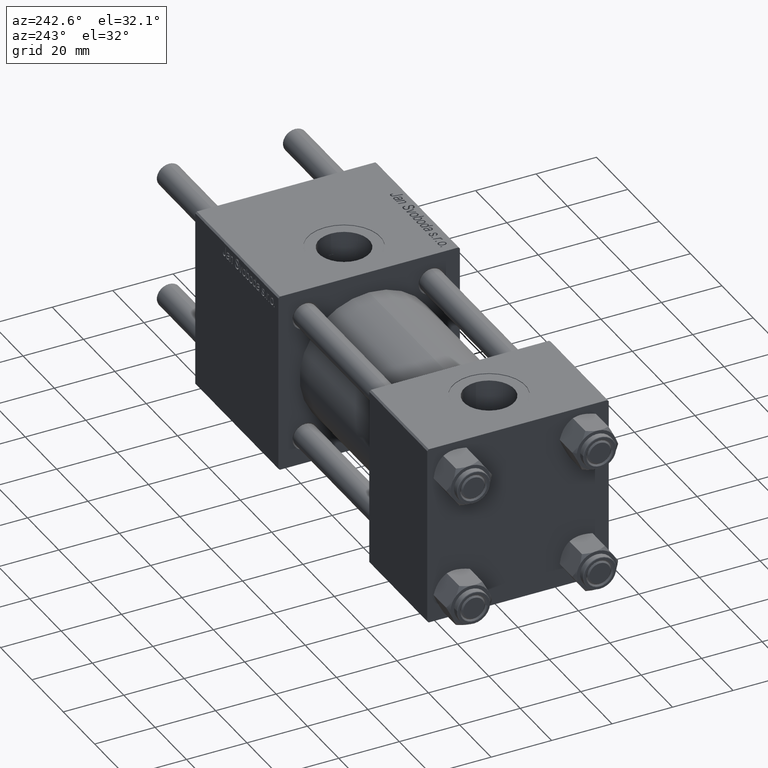
[diagram: clean part render]
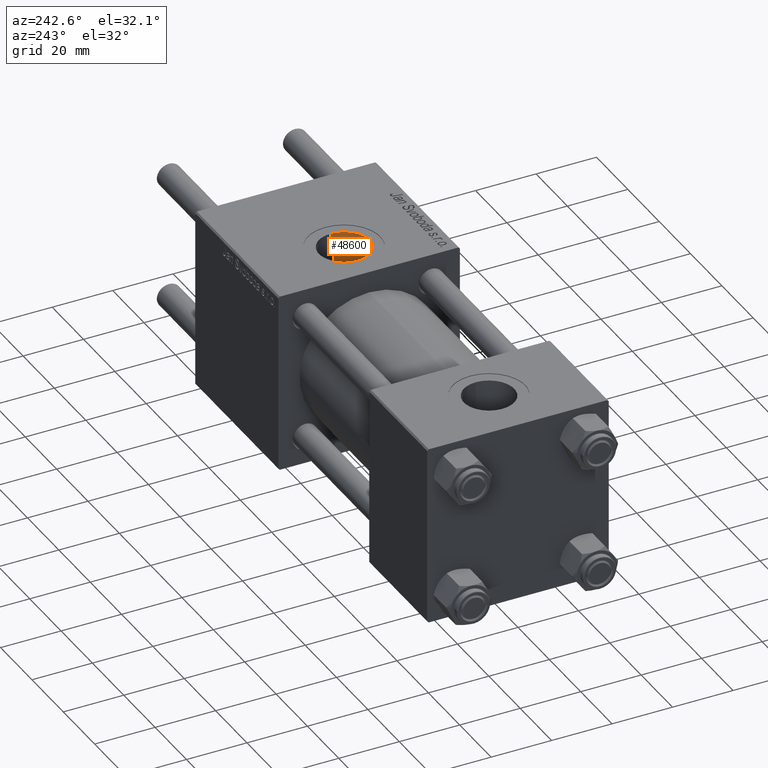
[diagram: same view with one face highlighted and labeled with its STEP entity id]
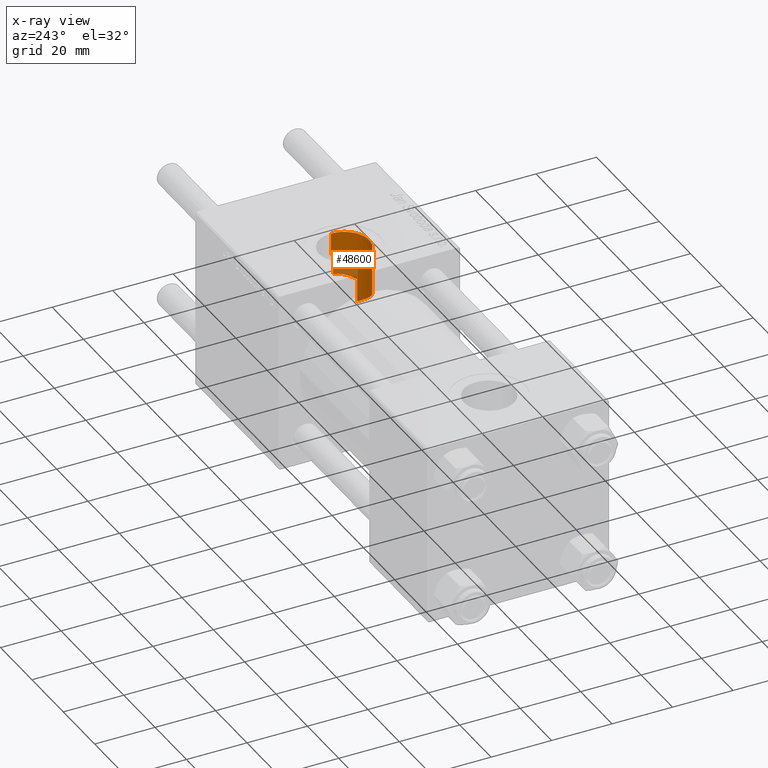
[diagram: x-ray of the same camera — body ghosted, the highlighted face saturated]
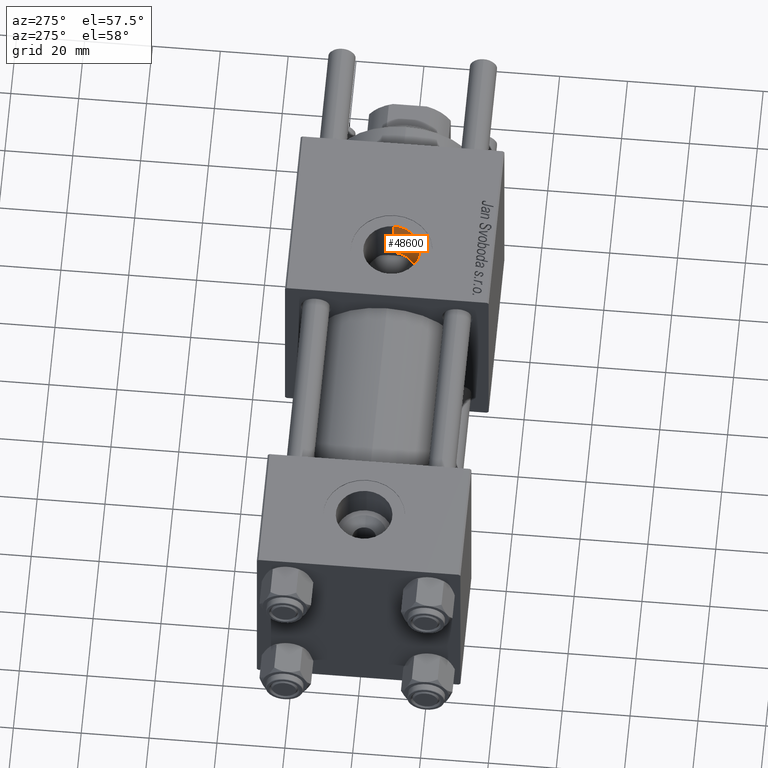
[diagram: same view with one face highlighted and labeled with its STEP entity id]
A machine part, auxiliary view. The second image highlights one B-rep face of the part: STEP entity #48600.
The next image is the same camera in x-ray: the body ghosted, the highlighted face saturated — about 10% of this face is hidden behind the body in this view.
A second angle (auxiliary view) of the same face is appended — the face is thin or edge-on in the first view.
In plain terms, the highlighted cylindrical surface (edge-blend (fillet) strip) has radius 8.33 mm, axis along (0, 0, -1).
Its self-contained STEP definition (entity closure, byte-faithful):
#262 = CARTESIAN_POINT ( 'NONE',  ( 103.7356139241942827, -4.094008462183724717, 14.95330218343579709 ) ) ;
#553 = ORIENTED_EDGE ( 'NONE', *, *, #54469, .F. ) ;
#1078 = DIRECTION ( 'NONE',  ( -0.000000000000000000, -0.000000000000000000, -1.000000000000000000 ) ) ;
#1428 = CARTESIAN_POINT ( 'NONE',  ( 104.8421395764249837, -5.622509492967815881, 14.44759832893447360 ) ) ;
#1665 = CARTESIAN_POINT ( 'NONE',  ( 119.3300000000000125, 2.755455270027974659E-15, 22.50000000000000355 ) ) ;
#2362 = CARTESIAN_POINT ( 'NONE',  ( 118.2557022334251258, -4.107191428843018244, 14.94947048340120332 ) ) ;
#2616 = B_SPLINE_CURVE_WITH_KNOTS ( 'NONE', 3,
 ( #5282, #32548, #50592, #40839, #1428, #23643, #36109, #262, #18330, #36400, #54441, #13892, #31970, #23067, #41130, #28688 ),
 .UNSPECIFIED., .F., .F.,
 ( 4, 2, 2, 2, 2, 2, 2, 4 ),
 ( 1.762687342693953287E-17, 0.002343612196725057811, 0.003515418295087579994, 0.004687224393450101743, 0.005859030491812623059, 0.007030836590175145243, 0.008202642688537667426, 0.009374448786900189609 ),
 .UNSPECIFIED. ) ;
#5282 = CARTESIAN_POINT ( 'NONE',  ( 107.2451498032544919, -7.435724578008534813, 13.59999999999999076 ) ) ;
#5804 = DIRECTION ( 'NONE',  ( 1.000000000000000000, 0.000000000000000000, 0.000000000000000000 ) ) ;
#6272 = ORIENTED_EDGE ( 'NONE', *, *, #25808, .T. ) ;
#6368 = CARTESIAN_POINT ( 'NONE',  ( 119.3300000000000125, -2.449316168263869821E-15, 29.79999999999999716 ) ) ;
#6795 = CARTESIAN_POINT ( 'NONE',  ( 116.7527035097904502, -6.034536163537686626, 14.27924648151569897 ) ) ;
#7537 = DIRECTION ( 'NONE',  ( -0.000000000000000000, -0.000000000000000000, 1.000000000000000000 ) ) ;
#8087 = DIRECTION ( 'NONE',  ( 1.000000000000000000, 0.000000000000000000, 0.000000000000000000 ) ) ;
#9690 = CARTESIAN_POINT ( 'NONE',  ( 111.0000000000000000, -3.469446951953613794E-15, 52.79999999999999716 ) ) ;
#11047 = ORIENTED_EDGE ( 'NONE', *, *, #28153, .F. ) ;
#11254 = ORIENTED_EDGE ( 'NONE', *, *, #38119, .T. ) ;
#11535 = CARTESIAN_POINT ( 'NONE',  ( 115.0719793388101806, -7.275582495151264872, 13.68755679569670036 ) ) ;
#12126 = VERTEX_POINT ( 'NONE', #22585 ) ;
#13785 = CIRCLE ( 'NONE', #32701, 8.330000000000003624 ) ;
#13892 = CARTESIAN_POINT ( 'NONE',  ( 102.8906515532532637, -1.943315834972990430, 15.38227098439064022 ) ) ;
#14820 = CARTESIAN_POINT ( 'NONE',  ( 119.2379181272459761, -1.435846766692881138, 15.45061967576075013 ) ) ;
#15114 = CARTESIAN_POINT ( 'NONE',  ( 119.0832175232422827, -2.135847849508031526, 15.36739229984345556 ) ) ;
#15635 = EDGE_CURVE ( 'NONE', #43841, #28056, #13785, .T. ) ;
#15814 = VECTOR ( 'NONE', #55198, 1000.000000000000000 ) ;
#15987 = CARTESIAN_POINT ( 'NONE',  ( 116.2310764146980091, -6.491922975836205367, 14.07719584522191347 ) ) ;
#16439 = CARTESIAN_POINT ( 'NONE',  ( 119.2999999999999829, -0.7063285354565423946, 52.79999999999999716 ) ) ;
#16855 = CARTESIAN_POINT ( 'NONE',  ( 117.6814859054843367, -4.986894924185446776, 14.67899340481585746 ) ) ;
#17961 = VECTOR ( 'NONE', #7537, 1000.000000000000000 ) ;
#18149 = VECTOR ( 'NONE', #33084, 1000.000000000000000 ) ;
#18330 = CARTESIAN_POINT ( 'NONE',  ( 103.5555123538905207, -3.757474466741724584, 15.04203335714862710 ) ) ;
#18843 = CARTESIAN_POINT ( 'NONE',  ( 111.0000000000000000, -3.469446951953613794E-15, 29.79999999999999716 ) ) ;
#19086 = LINE ( 'NONE', #50193, #15814 ) ;
#19127 = CARTESIAN_POINT ( 'NONE',  ( 102.6700000000000017, -3.469446951953613794E-15, 29.79999999999999716 ) ) ;
#19139 = CARTESIAN_POINT ( 'NONE',  ( 119.3200361445783102, -0.4708856903043605602, 22.49630535626710781 ) ) ;
#20606 = LINE ( 'NONE', #25062, #18149 ) ;
#20861 = CIRCLE ( 'NONE', #50205, 8.330000000000003624 ) ;
#21134 = CARTESIAN_POINT ( 'NONE',  ( 111.0000000000000000, -3.469446951953613794E-15, 13.59999999999999076 ) ) ;
#21162 = LINE ( 'NONE', #16439, #17961 ) ;
#21591 = CARTESIAN_POINT ( 'NONE',  ( 118.0762267006177098, -4.408899020335755203, 14.86282536370445229 ) ) ;
#21986 = B_SPLINE_CURVE_WITH_KNOTS ( 'NONE', 3,
 ( #55367, #14820, #15114, #33195, #51235, #2362, #21591, #16855, #39065, #44099, #6795, #15987, #34642, #30494, #11535, #39658 ),
 .UNSPECIFIED., .F., .F.,
 ( 4, 2, 2, 2, 2, 2, 2, 4 ),
 ( 3.416651864263509077E-16, 0.002164281519508079021, 0.003246422279261940939, 0.004328563039015803290, 0.005410703798769665208, 0.006492844558523526259, 0.007574985318277389044, 0.008657126078031250963 ),
 .UNSPECIFIED. ) ;
#22585 = CARTESIAN_POINT ( 'NONE',  ( 102.6699999999996180, -2.713081726590588117E-14, 15.50000000000020428 ) ) ;
#23067 = CARTESIAN_POINT ( 'NONE',  ( 102.6985123997140477, -0.7916320528489119157, 15.48462509825850653 ) ) ;
#23643 = CARTESIAN_POINT ( 'NONE',  ( 104.3580999100944950, -5.041529647880462761, 14.66044642165734757 ) ) ;
#24170 = CARTESIAN_POINT ( 'NONE',  ( 119.2999999999999829, -0.7063285354565423946, 22.48891060056044111 ) ) ;
#25062 = CARTESIAN_POINT ( 'NONE',  ( 102.6700000000000017, -3.469446951953613794E-15, 52.79999999999999716 ) ) ;
#25808 = EDGE_CURVE ( 'NONE', #41539, #54134, #40448, .T. ) ;
#26255 = CARTESIAN_POINT ( 'NONE',  ( 114.7548501967455081, -7.435724578008534813, 13.59999999999999076 ) ) ;
#26877 = EDGE_CURVE ( 'NONE', #34333, #50972, #21986, .T. ) ;
#27770 = DIRECTION ( 'NONE',  ( 0.000000000000000000, 0.000000000000000000, -1.000000000000000000 ) ) ;
#28056 = VERTEX_POINT ( 'NONE', #19127 ) ;
#28153 = EDGE_CURVE ( 'NONE', #34333, #54134, #21162, .T. ) ;
#28688 = CARTESIAN_POINT ( 'NONE',  ( 102.6699999999996180, -2.713081726590588117E-14, 15.50000000000020428 ) ) ;
#29666 = CARTESIAN_POINT ( 'NONE',  ( 107.2451498032544919, -7.435724578008534813, 13.59999999999999076 ) ) ;
#30494 = CARTESIAN_POINT ( 'NONE',  ( 115.3773959923152148, -7.095733675622498460, 13.78217589145789645 ) ) ;
#31970 = CARTESIAN_POINT ( 'NONE',  ( 102.8089720379881413, -1.564748737126397504, 15.42568822226018455 ) ) ;
#32548 = CARTESIAN_POINT ( 'NONE',  ( 106.5580543014319232, -7.088758972554062510, 13.78970152060303711 ) ) ;
#32701 = AXIS2_PLACEMENT_3D ( 'NONE', #18843, #1078, #5804 ) ;
#33084 = DIRECTION ( 'NONE',  ( 0.000000000000000000, 0.000000000000000000, -1.000000000000000000 ) ) ;
#33158 = CARTESIAN_POINT ( 'NONE',  ( 119.2999999999999829, -0.7063285354565423946, 22.48891060056044111 ) ) ;
#33195 = CARTESIAN_POINT ( 'NONE',  ( 118.7215032992636736, -3.145651711574988241, 15.18130506059506679 ) ) ;
#34261 = CARTESIAN_POINT ( 'NONE',  ( 119.2999999999999829, -0.7063285354565423946, 15.48389808801387701 ) ) ;
#34333 = VERTEX_POINT ( 'NONE', #34261 ) ;
#34642 = CARTESIAN_POINT ( 'NONE',  ( 115.9563515716283746, -6.704148802593676848, 13.97684504926374061 ) ) ;
#35545 = EDGE_LOOP ( 'NONE', ( #44008, #50185, #6272, #11047, #41781, #57156, #11254, #553 ) ) ;
#36109 = CARTESIAN_POINT ( 'NONE',  ( 104.1369027071221751, -4.736043274220092414, 14.76252165391442794 ) ) ;
#36400 = CARTESIAN_POINT ( 'NONE',  ( 103.2388751121312396, -3.050237885181526387, 15.20123122413415828 ) ) ;
#36643 = EDGE_CURVE ( 'NONE', #43841, #41539, #19086, .T. ) ;
#37517 = FACE_OUTER_BOUND ( 'NONE', #35545, .T. ) ;
#38119 = EDGE_CURVE ( 'NONE', #47288, #12126, #2616, .T. ) ;
#38743 = AXIS2_PLACEMENT_3D ( 'NONE', #9690, #27770, #54396 ) ;
#39065 = CARTESIAN_POINT ( 'NONE',  ( 117.4654438345355487, -5.264046141787121158, 14.58145607373045571 ) ) ;
#39658 = CARTESIAN_POINT ( 'NONE',  ( 114.7548501967455081, -7.435724578008534813, 13.59999999999999076 ) ) ;
#39782 = DIRECTION ( 'NONE',  ( 0.000000000000000000, 0.000000000000000000, 1.000000000000000000 ) ) ;
#40448 = B_SPLINE_CURVE_WITH_KNOTS ( 'NONE', 3,
 ( #1665, #55543, #19139, #24170 ),
 .UNSPECIFIED., .F., .F.,
 ( 4, 4 ),
 ( 0.0007063285354565328363, 0.001412657070913077816 ),
 .UNSPECIFIED. ) ;
#40839 = CARTESIAN_POINT ( 'NONE',  ( 105.1064272110299385, -5.898864207807588578, 14.33631558793831573 ) ) ;
#41130 = CARTESIAN_POINT ( 'NONE',  ( 102.6700000000000301, -0.3932737753490447297, 15.50000000000000178 ) ) ;
#41539 = VERTEX_POINT ( 'NONE', #52052 ) ;
#41781 = ORIENTED_EDGE ( 'NONE', *, *, #26877, .T. ) ;
#43841 = VERTEX_POINT ( 'NONE', #6368 ) ;
#44008 = ORIENTED_EDGE ( 'NONE', *, *, #15635, .F. ) ;
#44099 = CARTESIAN_POINT ( 'NONE',  ( 116.9996026483513276, -5.789379398717359848, 14.38096412590969564 ) ) ;
#47288 = VERTEX_POINT ( 'NONE', #29666 ) ;
#48600 = ADVANCED_FACE ( 'NONE', ( #37517 ), #51127, .F. ) ;
#50125 = EDGE_CURVE ( 'NONE', #47288, #50972, #20861, .T. ) ;
#50185 = ORIENTED_EDGE ( 'NONE', *, *, #36643, .T. ) ;
#50193 = CARTESIAN_POINT ( 'NONE',  ( 119.3300000000000125, -2.449316168263869032E-15, 52.79999999999999716 ) ) ;
#50205 = AXIS2_PLACEMENT_3D ( 'NONE', #21134, #39782, #8087 ) ;
#50592 = CARTESIAN_POINT ( 'NONE',  ( 105.9411433775953384, -6.660665606237818892, 14.00684504084867754 ) ) ;
#50972 = VERTEX_POINT ( 'NONE', #26255 ) ;
#51127 = CYLINDRICAL_SURFACE ( 'NONE', #38743, 8.330000000000003624 ) ;
#51235 = CARTESIAN_POINT ( 'NONE',  ( 118.5780231920914360, -3.476751477085508135, 15.10853693558145494 ) ) ;
#52052 = CARTESIAN_POINT ( 'NONE',  ( 119.3300000000000125, 2.755455270027974659E-15, 22.50000000000000355 ) ) ;
#54134 = VERTEX_POINT ( 'NONE', #33158 ) ;
#54396 = DIRECTION ( 'NONE',  ( -1.000000000000000000, 0.000000000000000000, 0.000000000000000000 ) ) ;
#54441 = CARTESIAN_POINT ( 'NONE',  ( 103.1052114789570311, -2.685204437881589801, 15.27024604249924522 ) ) ;
#54469 = EDGE_CURVE ( 'NONE', #28056, #12126, #20606, .T. ) ;
#55198 = DIRECTION ( 'NONE',  ( 0.000000000000000000, 0.000000000000000000, -1.000000000000000000 ) ) ;
#55367 = CARTESIAN_POINT ( 'NONE',  ( 119.2999999999999829, -0.7063285354565423946, 15.48389808801387701 ) ) ;
#55543 = CARTESIAN_POINT ( 'NONE',  ( 119.3300000000000125, -0.2354428451521790588, 22.50000000000000355 ) ) ;
#57156 = ORIENTED_EDGE ( 'NONE', *, *, #50125, .F. ) ;